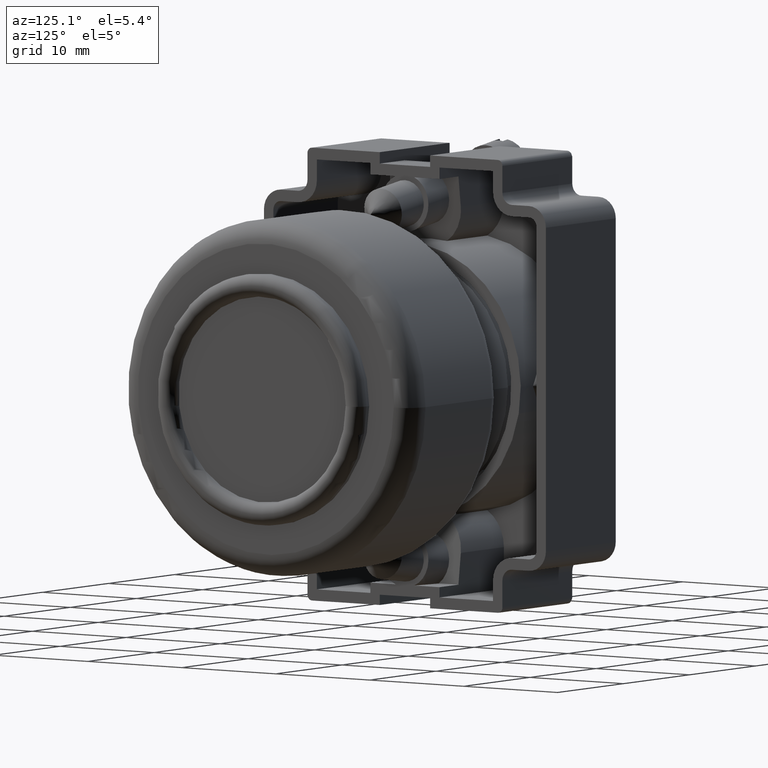
[diagram: clean part render]
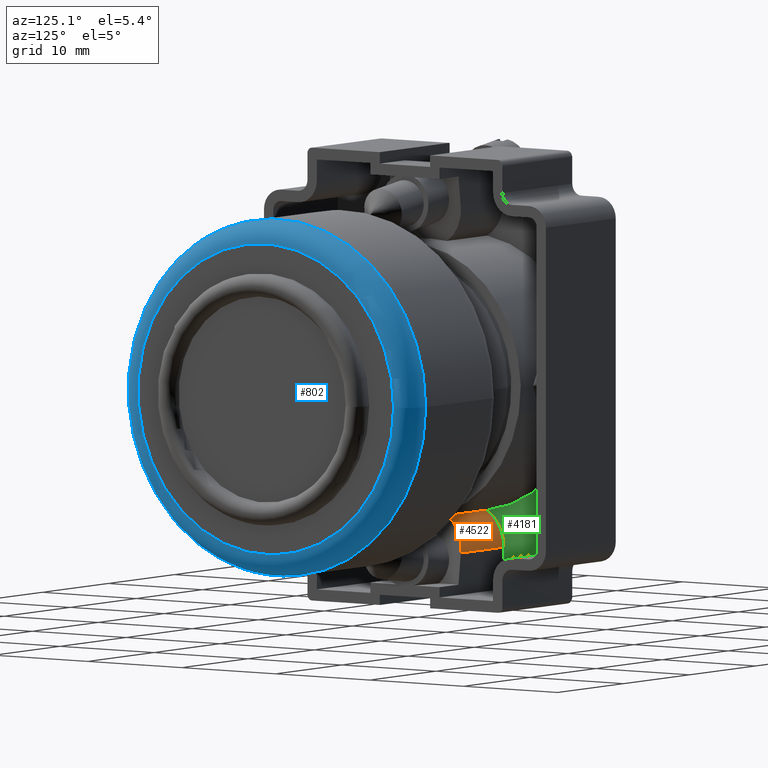
[diagram: same view with three faces highlighted in distinct colors, each labeled with its STEP entity id]
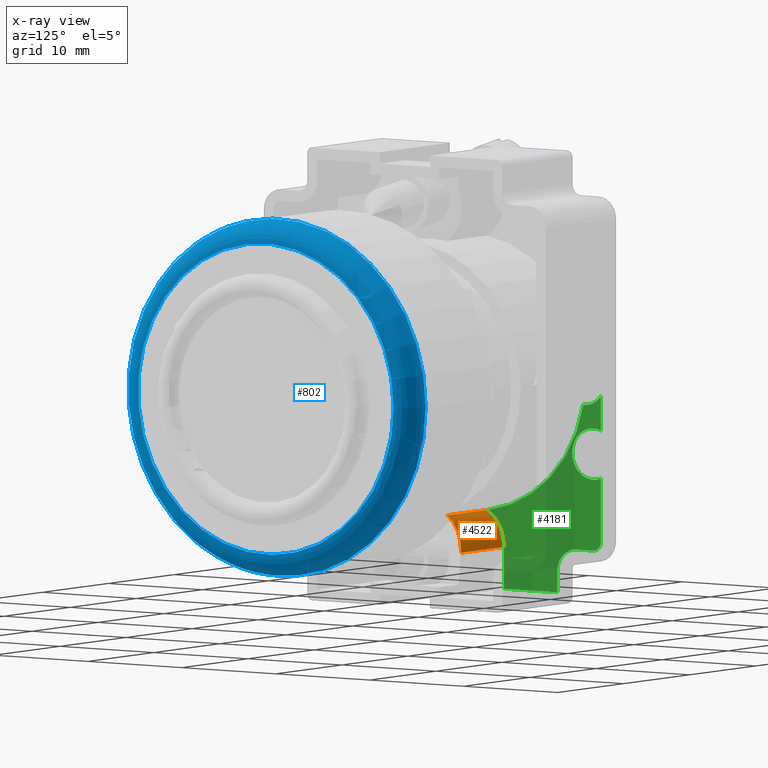
[diagram: x-ray of the same camera — body ghosted, the three highlighted faces saturated]
A machine part, auxiliary view with three faces highlighted in distinct colors.
The next image is the same camera in x-ray (body ghosted, the three faces saturated) — at least one of them is partly hidden behind the body in this view.
Their STEP definitions:

[orange] entity #4522 — the highlighted cylindrical surface (partial cylindrical patch) has radius 3.675 mm, axis along (1, -0, -0).
#3180=CARTESIAN_POINT('',(-11.187830380465781,12.044157796525640,3.649108418156107));
#3181=VERTEX_POINT('',#3180);
#3231=CARTESIAN_POINT('',(-14.332780308276106,13.817864828157555,3.235067905372579));
#3232=VERTEX_POINT('',#3231);
#3239=CARTESIAN_POINT('',(-14.332780308276106,10.142864828157554,3.235067905372577));
#3240=DIRECTION('',(0.130526192220052,2.116732E-030,-0.991444861373810));
#3241=DIRECTION('',(-0.991444861373810,0.0,-0.130526192220052));
#3242=AXIS2_PLACEMENT_3D('',#3239,#3240,#3241);
#3243=ELLIPSE('',#3242,3.706711430132075,3.675000000000014);
#3244=EDGE_CURVE('',#3181,#3232,#3243,.F.);
#3780=CARTESIAN_POINT('',(-11.187830380465781,12.044157796525639,9.750000000000000));
#3781=VERTEX_POINT('',#3780);
#3782=CARTESIAN_POINT('',(-11.187830380465781,12.044157796525640,3.649108418156107));
#3783=DIRECTION('',(0.0,0.0,1.0));
#3784=VECTOR('',#3783,6.100891581843893);
#3785=LINE('',#3782,#3784);
#3786=EDGE_CURVE('',#3181,#3781,#3785,.T.);
#4097=CARTESIAN_POINT('',(-14.332780308276106,13.817864828157555,9.750000000000000));
#4098=VERTEX_POINT('',#4097);
#4099=CARTESIAN_POINT('',(-14.332780308276106,10.142864828157554,9.750000000000000));
#4100=DIRECTION('',(0.0,0.0,1.0));
#4101=DIRECTION('',(0.0,-1.0,0.0));
#4102=AXIS2_PLACEMENT_3D('',#4099,#4100,#4101);
#4103=CIRCLE('',#4102,3.675000000000014);
#4104=EDGE_CURVE('',#4098,#3781,#4103,.F.);
#4506=CARTESIAN_POINT('',(-14.332780308276106,10.142864828157554,10.750000000000000));
#4507=DIRECTION('',(0.0,0.0,-1.0));
#4508=DIRECTION('',(0.0,-1.0,0.0));
#4509=AXIS2_PLACEMENT_3D('',#4506,#4507,#4508);
#4510=CYLINDRICAL_SURFACE('',#4509,3.675000000000014);
#4511=ORIENTED_EDGE('',*,*,#3786,.F.);
#4512=ORIENTED_EDGE('',*,*,#3244,.T.);
#4513=CARTESIAN_POINT('',(-14.332780308276106,13.817864828157555,9.750000000000000));
#4514=DIRECTION('',(0.0,0.0,-1.0));
#4515=VECTOR('',#4514,6.514932094627421);
#4516=LINE('',#4513,#4515);
#4517=EDGE_CURVE('',#4098,#3232,#4516,.T.);
#4518=ORIENTED_EDGE('',*,*,#4517,.F.);
#4519=ORIENTED_EDGE('',*,*,#4104,.T.);
#4520=EDGE_LOOP('',(#4511,#4512,#4518,#4519));
#4521=FACE_OUTER_BOUND('',#4520,.T.);
#4522=ADVANCED_FACE('',(#4521),#4510,.T.);

[blue] entity #802 — the highlighted toroidal blend (fillet) surface has major radius 13.6 mm and minor (blend) radius 2 mm.
#768=CARTESIAN_POINT('',(2.355444339828559,16.520334286870927,0.0));
#769=VERTEX_POINT('',#768);
#770=CARTESIAN_POINT('',(2.355444339828561,0.920334286870927,0.0));
#771=DIRECTION('',(1.0,0.0,0.0));
#772=DIRECTION('',(0.0,1.0,0.0));
#773=AXIS2_PLACEMENT_3D('',#770,#771,#772);
#774=CIRCLE('',#773,15.600000000000001);
#775=EDGE_CURVE('',#769,#769,#774,.T.);
#783=CARTESIAN_POINT('',(2.355444339828559,0.920334286870927,0.0));
#784=DIRECTION('',(1.0,0.0,0.0));
#785=DIRECTION('',(0.0,0.0,-1.0));
#786=AXIS2_PLACEMENT_3D('',#783,#784,#785);
#787=TOROIDAL_SURFACE('',#786,13.600000000000001,2.000000000000002);
#788=CARTESIAN_POINT('',(4.355444339828560,14.520334286870929,0.0));
#789=VERTEX_POINT('',#788);
#790=CARTESIAN_POINT('',(4.355444339828560,0.920334286870927,0.0));
#791=DIRECTION('',(1.0,0.0,0.0));
#792=DIRECTION('',(0.0,1.0,0.0));
#793=AXIS2_PLACEMENT_3D('',#790,#791,#792);
#794=CIRCLE('',#793,13.600000000000001);
#795=EDGE_CURVE('',#789,#789,#794,.T.);
#796=ORIENTED_EDGE('',*,*,#795,.F.);
#797=EDGE_LOOP('',(#796));
#798=FACE_OUTER_BOUND('',#797,.T.);
#799=ORIENTED_EDGE('',*,*,#775,.T.);
#800=EDGE_LOOP('',(#799));
#801=FACE_BOUND('',#800,.T.);
#802=ADVANCED_FACE('',(#798,#801),#787,.T.);

[green] entity #4181 — the highlighted planar face has unit normal (-1, 0, 0).
#3780=CARTESIAN_POINT('',(-11.187830380465781,12.044157796525639,9.750000000000000));
#3781=VERTEX_POINT('',#3780);
#3788=CARTESIAN_POINT('',(-1.428736938399795,22.258035989983284,9.750000000000000));
#3789=VERTEX_POINT('',#3788);
#3790=CARTESIAN_POINT('',(0.817219691723891,10.342864828157554,9.750000000000000));
#3791=DIRECTION('',(0.0,0.0,-1.000000000000000));
#3792=DIRECTION('',(-0.134831460674157,0.990868546888271,0.0));
#3793=AXIS2_PLACEMENT_3D('',#3790,#3791,#3792);
#3794=CIRCLE('',#3793,12.125000000000000);
#3795=EDGE_CURVE('',#3781,#3789,#3794,.T.);
#3914=CARTESIAN_POINT('',(-3.579806223794800,24.142864828157556,9.750000000000000));
#3915=VERTEX_POINT('',#3914);
#3922=CARTESIAN_POINT('',(-7.785754392757418,24.142864828157556,9.750000000000000));
#3923=VERTEX_POINT('',#3922);
#3924=CARTESIAN_POINT('',(-5.682780308276109,23.342864828157555,9.750000000000000));
#3925=DIRECTION('',(0.0,0.0,-1.0));
#3926=DIRECTION('',(-1.0,0.0,0.0));
#3927=AXIS2_PLACEMENT_3D('',#3924,#3925,#3926);
#3928=CIRCLE('',#3927,2.250000000000000);
#3929=EDGE_CURVE('',#3915,#3923,#3928,.T.);
#4092=CARTESIAN_POINT('',(0.840775314883319,10.142864828157549,9.750000000000000));
#4093=DIRECTION('',(0.0,0.0,1.0));
#4094=DIRECTION('',(1.0,0.0,0.0));
#4095=AXIS2_PLACEMENT_3D('',#4092,#4093,#4094);
#4096=PLANE('',#4095);
#4097=CARTESIAN_POINT('',(-14.332780308276106,13.817864828157555,9.750000000000000));
#4098=VERTEX_POINT('',#4097);
#4099=CARTESIAN_POINT('',(-14.332780308276106,10.142864828157554,9.750000000000000));
#4100=DIRECTION('',(0.0,0.0,1.0));
#4101=DIRECTION('',(0.0,-1.0,0.0));
#4102=AXIS2_PLACEMENT_3D('',#4099,#4100,#4101);
#4103=CIRCLE('',#4102,3.675000000000014);
#4104=EDGE_CURVE('',#4098,#3781,#4103,.F.);
#4105=ORIENTED_EDGE('',*,*,#4104,.F.);
#4106=CARTESIAN_POINT('',(-17.982780308276109,13.817864828157555,9.749999999999998));
#4107=VERTEX_POINT('',#4106);
#4108=CARTESIAN_POINT('',(-17.982780308276109,13.817864828157555,9.749999999999998));
#4109=DIRECTION('',(1.0,0.0,0.0));
#4110=VECTOR('',#4109,3.650000000000002);
#4111=LINE('',#4108,#4110);
#4112=EDGE_CURVE('',#4098,#4107,#4111,.F.);
#4113=ORIENTED_EDGE('',*,*,#4112,.T.);
#4114=CARTESIAN_POINT('',(-17.982780308276109,19.517864828157556,9.749999999999998));
#4115=VERTEX_POINT('',#4114);
#4116=CARTESIAN_POINT('',(-17.982780308276109,19.517864828157556,9.749999999999998));
#4117=DIRECTION('',(0.0,-1.0,0.0));
#4118=VECTOR('',#4117,5.700000000000001);
#4119=LINE('',#4116,#4118);
#4120=EDGE_CURVE('',#4107,#4115,#4119,.F.);
#4121=ORIENTED_EDGE('',*,*,#4120,.T.);
#4122=CARTESIAN_POINT('',(-16.132780308276100,19.517864828157556,9.750000000000000));
#4123=VERTEX_POINT('',#4122);
#4124=CARTESIAN_POINT('',(-16.132780308276100,19.517864828157556,9.750000000000000));
#4125=DIRECTION('',(-1.0,0.0,0.0));
#4126=VECTOR('',#4125,1.850000000000009);
#4127=LINE('',#4124,#4126);
#4128=EDGE_CURVE('',#4115,#4123,#4127,.F.);
#4129=ORIENTED_EDGE('',*,*,#4128,.T.);
#4130=CARTESIAN_POINT('',(-14.132780308276098,21.517864828157556,9.750000000000000));
#4131=VERTEX_POINT('',#4130);
#4132=CARTESIAN_POINT('',(-16.132780308276100,21.517864828157556,9.750000000000000));
#4133=DIRECTION('',(0.0,0.0,-1.0));
#4134=DIRECTION('',(0.0,1.0,0.0));
#4135=AXIS2_PLACEMENT_3D('',#4132,#4133,#4134);
#4136=CIRCLE('',#4135,2.000000000000001);
#4137=EDGE_CURVE('',#4123,#4131,#4136,.F.);
#4138=ORIENTED_EDGE('',*,*,#4137,.T.);
#4139=CARTESIAN_POINT('',(-14.132780308276097,23.342864828157555,9.750000000000000));
#4140=VERTEX_POINT('',#4139);
#4141=CARTESIAN_POINT('',(-14.132780308276097,23.342864828157555,9.750000000000000));
#4142=DIRECTION('',(0.0,-1.0,0.0));
#4143=VECTOR('',#4142,1.824999999999999);
#4144=LINE('',#4141,#4143);
#4145=EDGE_CURVE('',#4131,#4140,#4144,.F.);
#4146=ORIENTED_EDGE('',*,*,#4145,.T.);
#4147=CARTESIAN_POINT('',(-13.332780308276099,24.142864828157556,9.750000000000000));
#4148=VERTEX_POINT('',#4147);
#4149=CARTESIAN_POINT('',(-13.332780308276099,23.342864828157555,9.750000000000000));
#4150=DIRECTION('',(0.0,0.0,1.0));
#4151=DIRECTION('',(0.0,1.0,0.0));
#4152=AXIS2_PLACEMENT_3D('',#4149,#4150,#4151);
#4153=CIRCLE('',#4152,0.799999999999999);
#4154=EDGE_CURVE('',#4140,#4148,#4153,.F.);
#4155=ORIENTED_EDGE('',*,*,#4154,.T.);
#4156=CARTESIAN_POINT('',(-7.785754392757418,24.142864828157556,9.750000000000000));
#4157=DIRECTION('',(-1.0,0.0,0.0));
#4158=VECTOR('',#4157,5.547025915518681);
#4159=LINE('',#4156,#4158);
#4160=EDGE_CURVE('',#4148,#3923,#4159,.F.);
#4161=ORIENTED_EDGE('',*,*,#4160,.T.);
#4162=ORIENTED_EDGE('',*,*,#3929,.F.);
#4163=CARTESIAN_POINT('',(-0.596993870649194,24.142864828157556,9.750000000000000));
#4164=VERTEX_POINT('',#4163);
#4165=CARTESIAN_POINT('',(-0.596993870649194,24.142864828157556,9.750000000000000));
#4166=DIRECTION('',(-1.0,0.0,0.0));
#4167=VECTOR('',#4166,2.982812353145606);
#4168=LINE('',#4165,#4167);
#4169=EDGE_CURVE('',#3915,#4164,#4168,.F.);
#4170=ORIENTED_EDGE('',*,*,#4169,.T.);
#4171=CARTESIAN_POINT('',(0.817219691723898,22.392864828157553,9.750000000000000));
#4172=DIRECTION('',(0.0,0.0,-1.0));
#4173=DIRECTION('',(1.0,0.0,0.0));
#4174=AXIS2_PLACEMENT_3D('',#4171,#4172,#4173);
#4175=CIRCLE('',#4174,2.250000000000000);
#4176=EDGE_CURVE('',#3789,#4164,#4175,.T.);
#4177=ORIENTED_EDGE('',*,*,#4176,.F.);
#4178=ORIENTED_EDGE('',*,*,#3795,.F.);
#4179=EDGE_LOOP('',(#4105,#4113,#4121,#4129,#4138,#4146,#4155,#4161,#4162,#4170,#4177,#4178));
#4180=FACE_OUTER_BOUND('',#4179,.T.);
#4181=ADVANCED_FACE('',(#4180),#4096,.F.);